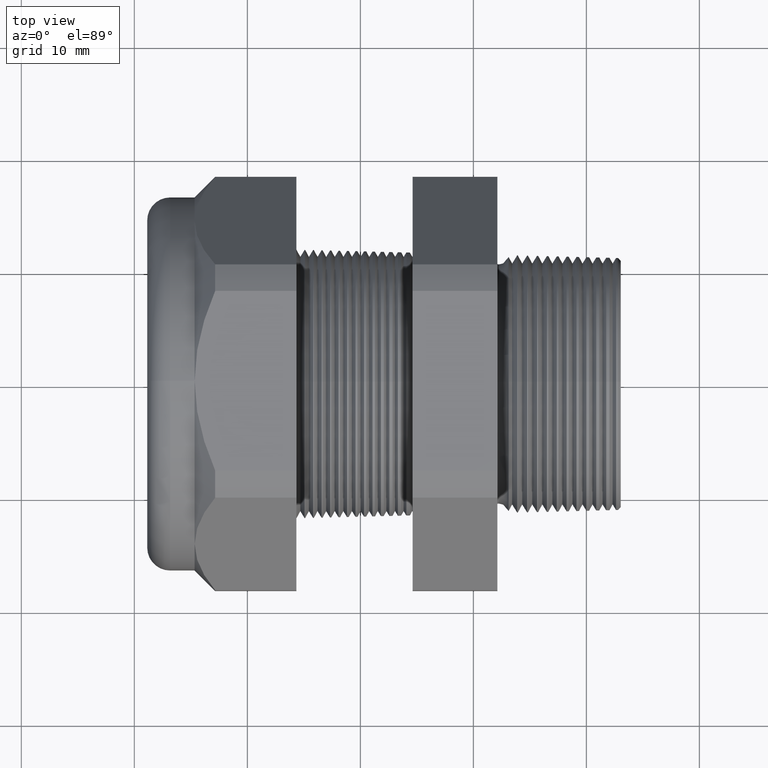
[diagram: clean part render]
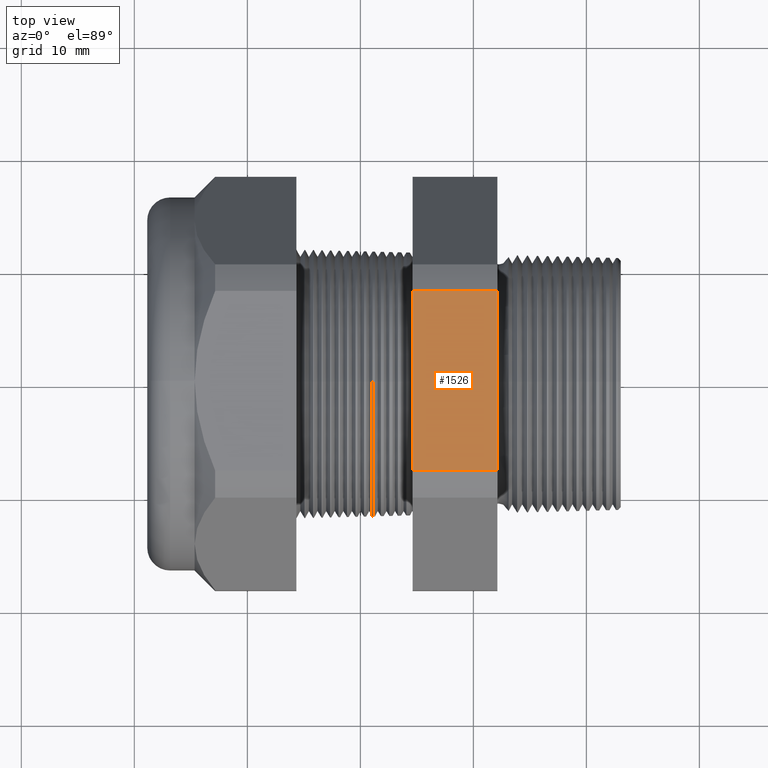
[diagram: same view with one face highlighted and labeled with its STEP entity id]
A machine part, top view. The second image highlights one B-rep face of the part: STEP entity #1526.
In plain terms, the highlighted planar face has unit normal (0, 0, 1).
Its self-contained STEP definition (entity closure, byte-faithful):
#1375 = VERTEX_POINT ( 'NONE', #4580 ) ;
#1377 = EDGE_CURVE ( 'NONE', #1375, #1378, #4579, .T. ) ;
#1378 = VERTEX_POINT ( 'NONE', #4575 ) ;
#1432 = VERTEX_POINT ( 'NONE', #4665 ) ;
#1490 = EDGE_CURVE ( 'NONE', #1432, #1491, #4731, .T. ) ;
#1491 = VERTEX_POINT ( 'NONE', #4727 ) ;
#1524 = EDGE_CURVE ( 'NONE', #1375, #1491, #4806, .T. ) ;
#1526 = ADVANCED_FACE ( 'NONE', ( #4802 ), #4801, .T. ) ;
#1527 = EDGE_LOOP ( 'NONE', ( #1528, #1529, #1530, #1532 ) ) ;
#1528 = ORIENTED_EDGE ( 'NONE', *, *, #1524, .T. ) ;
#1529 = ORIENTED_EDGE ( 'NONE', *, *, #1490, .F. ) ;
#1530 = ORIENTED_EDGE ( 'NONE', *, *, #1531, .F. ) ;
#1531 = EDGE_CURVE ( 'NONE', #1378, #1432, #4796, .T. ) ;
#1532 = ORIENTED_EDGE ( 'NONE', *, *, #1377, .F. ) ;
#4575 = CARTESIAN_POINT ( 'NONE',  ( -0.3100000000000000000, -0.3131489262315937400, 0.6500000000000000200 ) ) ;
#4576 = DIRECTION ( 'NONE',  ( 0.0000000000000000000, -1.000000000000000000, 0.0000000000000000000 ) ) ;
#4577 = VECTOR ( 'NONE', #4576, 39.37007874015748100 ) ;
#4578 = CARTESIAN_POINT ( 'NONE',  ( -0.3100000000000000000, 1.300000000000000000, 0.6499999999999999100 ) ) ;
#4579 = LINE ( 'NONE', #4578, #4577 ) ;
#4580 = CARTESIAN_POINT ( 'NONE',  ( -0.3100000000000000000, 0.3131489262315937900, 0.6499999999999999100 ) ) ;
#4665 = CARTESIAN_POINT ( 'NONE',  ( -0.6052755905511810800, -0.3131489262315937400, 0.6500000000000000200 ) ) ;
#4727 = CARTESIAN_POINT ( 'NONE',  ( -0.6052755905511810800, 0.3131489262315937900, 0.6499999999999999100 ) ) ;
#4728 = DIRECTION ( 'NONE',  ( 0.0000000000000000000, 1.000000000000000000, 0.0000000000000000000 ) ) ;
#4729 = VECTOR ( 'NONE', #4728, 39.37007874015748100 ) ;
#4730 = CARTESIAN_POINT ( 'NONE',  ( -0.6052755905511809600, 1.300000000000000000, 0.6499999999999999100 ) ) ;
#4731 = LINE ( 'NONE', #4730, #4729 ) ;
#4793 = DIRECTION ( 'NONE',  ( -1.000000000000000000, 0.0000000000000000000, 0.0000000000000000000 ) ) ;
#4794 = VECTOR ( 'NONE', #4793, 39.37007874015748100 ) ;
#4795 = CARTESIAN_POINT ( 'NONE',  ( 0.1200000000000000900, -0.3131489262315937400, 0.6500000000000000200 ) ) ;
#4796 = LINE ( 'NONE', #4795, #4794 ) ;
#4797 = DIRECTION ( 'NONE',  ( 1.000000000000000000, 0.0000000000000000000, 0.0000000000000000000 ) ) ;
#4798 = DIRECTION ( 'NONE',  ( 0.0000000000000000000, 0.0000000000000000000, 1.000000000000000000 ) ) ;
#4799 = CARTESIAN_POINT ( 'NONE',  ( 0.1200000000000000900, -0.3131489262315937900, 0.6499999999999999100 ) ) ;
#4800 = AXIS2_PLACEMENT_3D ( 'NONE', #4799, #4798, #4797 ) ;
#4801 = PLANE ( 'NONE',  #4800 ) ;
#4802 = FACE_OUTER_BOUND ( 'NONE', #1527, .T. ) ;
#4803 = DIRECTION ( 'NONE',  ( -1.000000000000000000, 0.0000000000000000000, 0.0000000000000000000 ) ) ;
#4804 = VECTOR ( 'NONE', #4803, 39.37007874015748100 ) ;
#4805 = CARTESIAN_POINT ( 'NONE',  ( 0.1200000000000000900, 0.3131489262315937900, 0.6499999999999999100 ) ) ;
#4806 = LINE ( 'NONE', #4805, #4804 ) ;